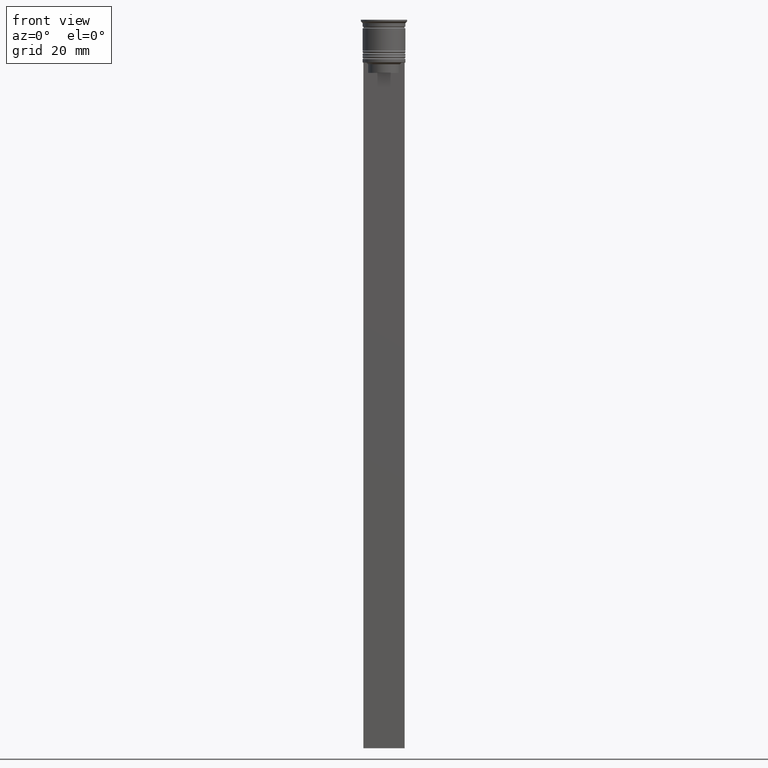
[diagram: clean part render]
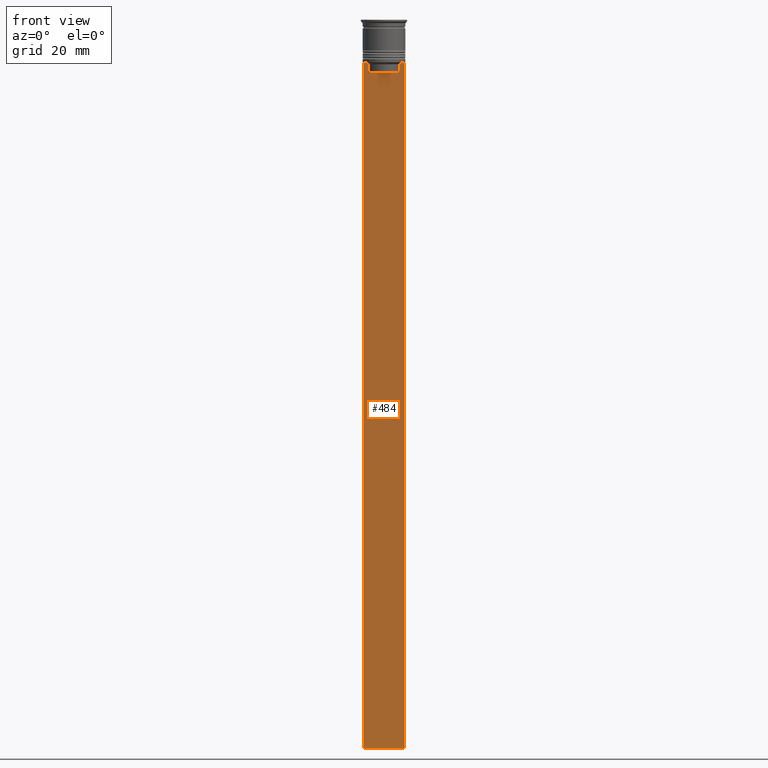
[diagram: same view with one face highlighted and labeled with its STEP entity id]
A machine part, front view. The second image highlights one B-rep face of the part: STEP entity #484.
In plain terms, the highlighted planar face has unit normal (0, -1, -0).
Its self-contained STEP definition (entity closure, byte-faithful):
#54 = DIRECTION ( 'NONE',  ( 1.000000000000000000, 0.000000000000000000, 0.000000000000000000 ) ) ;
#80 = CARTESIAN_POINT ( 'NONE',  ( 5.125670687822231564, -0.5000000000000017764, -12.50000000000000000 ) ) ;
#129 = AXIS2_PLACEMENT_3D ( 'NONE', #1523, #611, #1348 ) ;
#139 = VERTEX_POINT ( 'NONE', #321 ) ;
#148 = DIRECTION ( 'NONE',  ( -1.000000000000000000, 0.000000000000000000, 0.000000000000000000 ) ) ;
#152 = VERTEX_POINT ( 'NONE', #1581 ) ;
#183 = EDGE_CURVE ( 'NONE', #861, #139, #676, .T. ) ;
#185 = CARTESIAN_POINT ( 'NONE',  ( -4.958169823806760412, -0.5000000000000017764, -12.66670956677067927 ) ) ;
#200 = CARTESIAN_POINT ( 'NONE',  ( 4.790630799407577634, -0.5000000000000017764, -12.83338098686238915 ) ) ;
#250 = LINE ( 'NONE', #1877, #1540 ) ;
#258 = CARTESIAN_POINT ( 'NONE',  ( 4.623040125285526436, -0.5000000000000017764, 0.000000000000000000 ) ) ;
#261 = CARTESIAN_POINT ( 'NONE',  ( 6.000000000000016875, -0.5000000000000017764, -12.50000000000000000 ) ) ;
#308 = VECTOR ( 'NONE', #1513, 1000.000000000000000 ) ;
#314 = B_SPLINE_CURVE_WITH_KNOTS ( 'NONE', 3,
 ( #1463, #200, #750, #920 ),
 .UNSPECIFIED., .F., .F.,
 ( 4, 4 ),
 ( 0.02203698174624552780, 0.02275222543365896383 ),
 .UNSPECIFIED. ) ;
#321 = CARTESIAN_POINT ( 'NONE',  ( -5.999999999999983125, -0.5000000000000017764, -212.5000000000000284 ) ) ;
#410 = EDGE_CURVE ( 'NONE', #1017, #1680, #2039, .T. ) ;
#422 = LINE ( 'NONE', #1376, #1149 ) ;
#438 = DIRECTION ( 'NONE',  ( 1.000000000000000000, 0.000000000000000000, 0.000000000000000000 ) ) ;
#484 = ADVANCED_FACE ( 'NONE', ( #996 ), #790, .T. ) ;
#490 = CARTESIAN_POINT ( 'NONE',  ( 6.000000000000016875, -0.5000000000000017764, -212.5000000000000284 ) ) ;
#572 = EDGE_LOOP ( 'NONE', ( #612, #2103, #1185, #1642, #751, #1188, #1479, #1561, #602, #1922 ) ) ;
#602 = ORIENTED_EDGE ( 'NONE', *, *, #1344, .F. ) ;
#606 = DIRECTION ( 'NONE',  ( 0.000000000000000000, 0.000000000000000000, -1.000000000000000000 ) ) ;
#609 = CARTESIAN_POINT ( 'NONE',  ( 6.000000000000016875, -0.5000000000000017764, -212.5000000000000284 ) ) ;
#611 = DIRECTION ( 'NONE',  ( 0.000000000000000000, -1.000000000000000000, -0.000000000000000000 ) ) ;
#612 = ORIENTED_EDGE ( 'NONE', *, *, #1582, .F. ) ;
#676 = LINE ( 'NONE', #490, #1501 ) ;
#740 = CARTESIAN_POINT ( 'NONE',  ( -4.790630915080664742, -0.5000000000000017764, -12.83338087185995491 ) ) ;
#750 = CARTESIAN_POINT ( 'NONE',  ( 4.958169719475987947, -0.5000000000000017764, -12.66670967060858111 ) ) ;
#751 = ORIENTED_EDGE ( 'NONE', *, *, #1220, .F. ) ;
#776 = B_SPLINE_CURVE_WITH_KNOTS ( 'NONE', 3,
 ( #1837, #185, #740, #1673 ),
 .UNSPECIFIED., .F., .F.,
 ( 4, 4 ),
 ( 0.008759809102772709091, 0.009468778395565353653 ),
 .UNSPECIFIED. ) ;
#778 = EDGE_CURVE ( 'NONE', #1555, #139, #1128, .T. ) ;
#790 = PLANE ( 'NONE',  #129 ) ;
#815 = VECTOR ( 'NONE', #54, 1000.000000000000000 ) ;
#861 = VERTEX_POINT ( 'NONE', #609 ) ;
#896 = VERTEX_POINT ( 'NONE', #2062 ) ;
#920 = CARTESIAN_POINT ( 'NONE',  ( 5.125670687822231564, -0.5000000000000017764, -12.50000000000000000 ) ) ;
#932 = CARTESIAN_POINT ( 'NONE',  ( -4.623040125285526436, -0.5000000000000022204, -15.50000000000000000 ) ) ;
#996 = FACE_OUTER_BOUND ( 'NONE', #572, .T. ) ;
#1017 = VERTEX_POINT ( 'NONE', #2106 ) ;
#1108 = LINE ( 'NONE', #2228, #1354 ) ;
#1128 = LINE ( 'NONE', #1254, #1570 ) ;
#1149 = VECTOR ( 'NONE', #1208, 1000.000000000000000 ) ;
#1177 = LINE ( 'NONE', #261, #815 ) ;
#1185 = ORIENTED_EDGE ( 'NONE', *, *, #778, .T. ) ;
#1188 = ORIENTED_EDGE ( 'NONE', *, *, #1807, .F. ) ;
#1196 = CARTESIAN_POINT ( 'NONE',  ( 6.000000000000016875, -0.5000000000000017764, -12.50000000000000000 ) ) ;
#1208 = DIRECTION ( 'NONE',  ( 1.000000000000000000, 0.000000000000000000, 0.000000000000000000 ) ) ;
#1220 = EDGE_CURVE ( 'NONE', #1813, #861, #1108, .T. ) ;
#1254 = CARTESIAN_POINT ( 'NONE',  ( -5.999999999999983125, -0.5000000000000017764, -0.4584054212077061097 ) ) ;
#1255 = VECTOR ( 'NONE', #1364, 1000.000000000000000 ) ;
#1260 = VERTEX_POINT ( 'NONE', #80 ) ;
#1344 = EDGE_CURVE ( 'NONE', #1680, #896, #250, .T. ) ;
#1348 = DIRECTION ( 'NONE',  ( 0.000000000000000000, 0.000000000000000000, -1.000000000000000000 ) ) ;
#1354 = VECTOR ( 'NONE', #606, 1000.000000000000000 ) ;
#1360 = EDGE_CURVE ( 'NONE', #1555, #152, #1177, .T. ) ;
#1364 = DIRECTION ( 'NONE',  ( -0.000000000000000000, -0.000000000000000000, 1.000000000000000000 ) ) ;
#1376 = CARTESIAN_POINT ( 'NONE',  ( 6.000000000000016875, -0.5000000000000017764, -12.50000000000000000 ) ) ;
#1427 = VERTEX_POINT ( 'NONE', #2339 ) ;
#1463 = CARTESIAN_POINT ( 'NONE',  ( 4.623040125285526436, -0.5000000000000017764, -13.00000000000000178 ) ) ;
#1479 = ORIENTED_EDGE ( 'NONE', *, *, #1607, .F. ) ;
#1501 = VECTOR ( 'NONE', #148, 1000.000000000000000 ) ;
#1513 = DIRECTION ( 'NONE',  ( 0.000000000000000000, 0.000000000000000000, -1.000000000000000000 ) ) ;
#1523 = CARTESIAN_POINT ( 'NONE',  ( 6.000000000000016875, -0.5000000000000017764, -0.4584054212077061097 ) ) ;
#1540 = VECTOR ( 'NONE', #438, 1000.000000000000000 ) ;
#1555 = VERTEX_POINT ( 'NONE', #1957 ) ;
#1561 = ORIENTED_EDGE ( 'NONE', *, *, #1751, .F. ) ;
#1570 = VECTOR ( 'NONE', #1817, 1000.000000000000000 ) ;
#1581 = CARTESIAN_POINT ( 'NONE',  ( -5.125670687822231564, -0.5000000000000017764, -12.50000000000000000 ) ) ;
#1582 = EDGE_CURVE ( 'NONE', #152, #1017, #776, .T. ) ;
#1607 = EDGE_CURVE ( 'NONE', #1427, #1260, #314, .T. ) ;
#1642 = ORIENTED_EDGE ( 'NONE', *, *, #183, .F. ) ;
#1673 = CARTESIAN_POINT ( 'NONE',  ( -4.623040125285526436, -0.5000000000000017764, -13.00000000000000178 ) ) ;
#1680 = VERTEX_POINT ( 'NONE', #932 ) ;
#1751 = EDGE_CURVE ( 'NONE', #896, #1427, #2261, .T. ) ;
#1807 = EDGE_CURVE ( 'NONE', #1260, #1813, #422, .T. ) ;
#1813 = VERTEX_POINT ( 'NONE', #1196 ) ;
#1817 = DIRECTION ( 'NONE',  ( 0.000000000000000000, 0.000000000000000000, -1.000000000000000000 ) ) ;
#1837 = CARTESIAN_POINT ( 'NONE',  ( -5.125670687822231564, -0.5000000000000017764, -12.50000000000000000 ) ) ;
#1877 = CARTESIAN_POINT ( 'NONE',  ( 0.000000000000000000, -0.5000000000000022204, -15.50000000000000000 ) ) ;
#1922 = ORIENTED_EDGE ( 'NONE', *, *, #410, .F. ) ;
#1957 = CARTESIAN_POINT ( 'NONE',  ( -5.999999999999983125, -0.5000000000000017764, -12.50000000000000000 ) ) ;
#2039 = LINE ( 'NONE', #2052, #308 ) ;
#2052 = CARTESIAN_POINT ( 'NONE',  ( -4.623040125285526436, -0.5000000000000017764, 0.000000000000000000 ) ) ;
#2062 = CARTESIAN_POINT ( 'NONE',  ( 4.623040125285526436, -0.5000000000000022204, -15.50000000000000000 ) ) ;
#2103 = ORIENTED_EDGE ( 'NONE', *, *, #1360, .F. ) ;
#2106 = CARTESIAN_POINT ( 'NONE',  ( -4.623040125285526436, -0.5000000000000017764, -13.00000000000000178 ) ) ;
#2228 = CARTESIAN_POINT ( 'NONE',  ( 6.000000000000016875, -0.5000000000000017764, -0.4584054212077061097 ) ) ;
#2261 = LINE ( 'NONE', #258, #1255 ) ;
#2339 = CARTESIAN_POINT ( 'NONE',  ( 4.623040125285526436, -0.5000000000000017764, -13.00000000000000178 ) ) ;